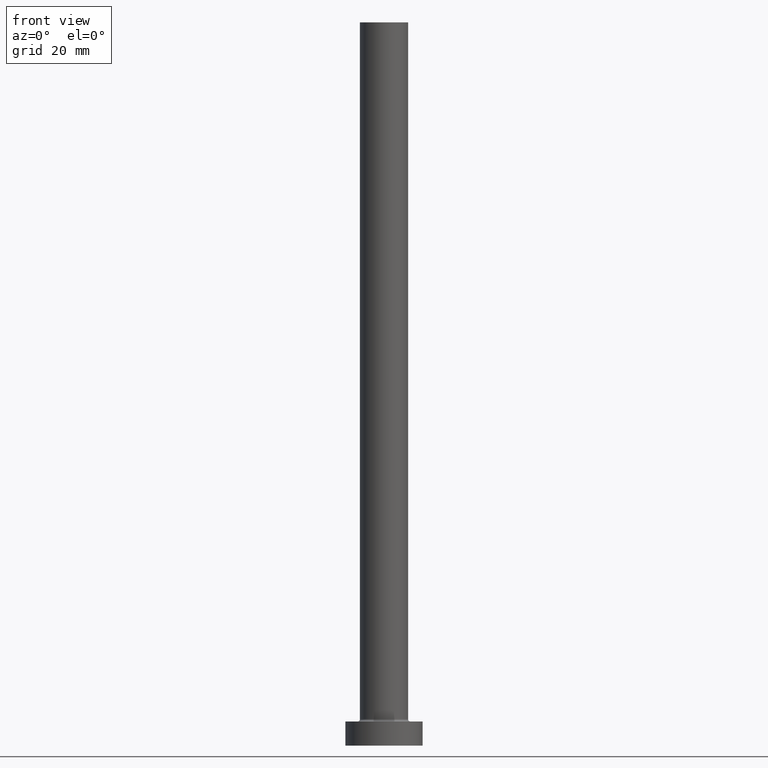
[diagram: clean part render]
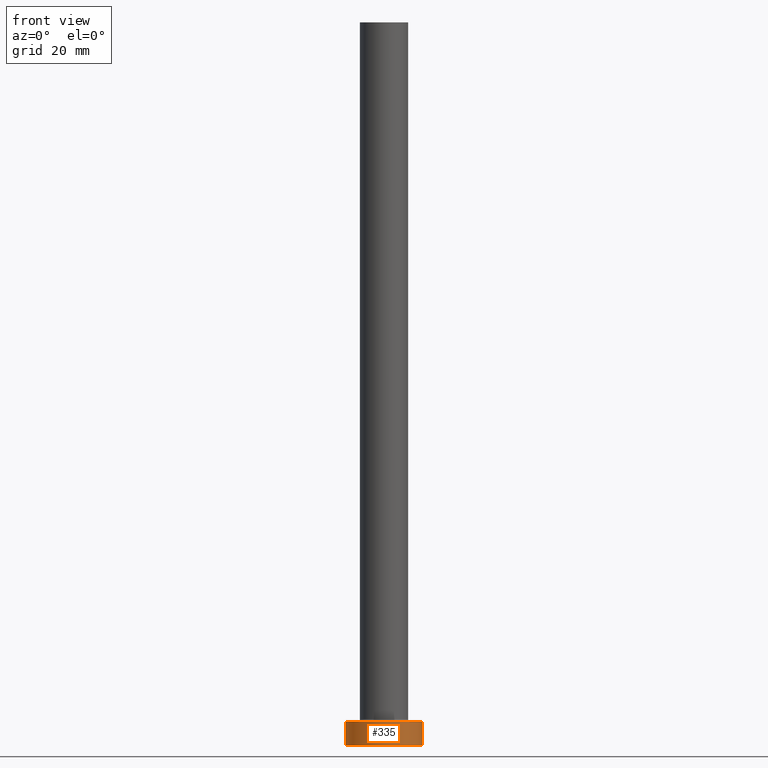
[diagram: same view with one face highlighted and labeled with its STEP entity id]
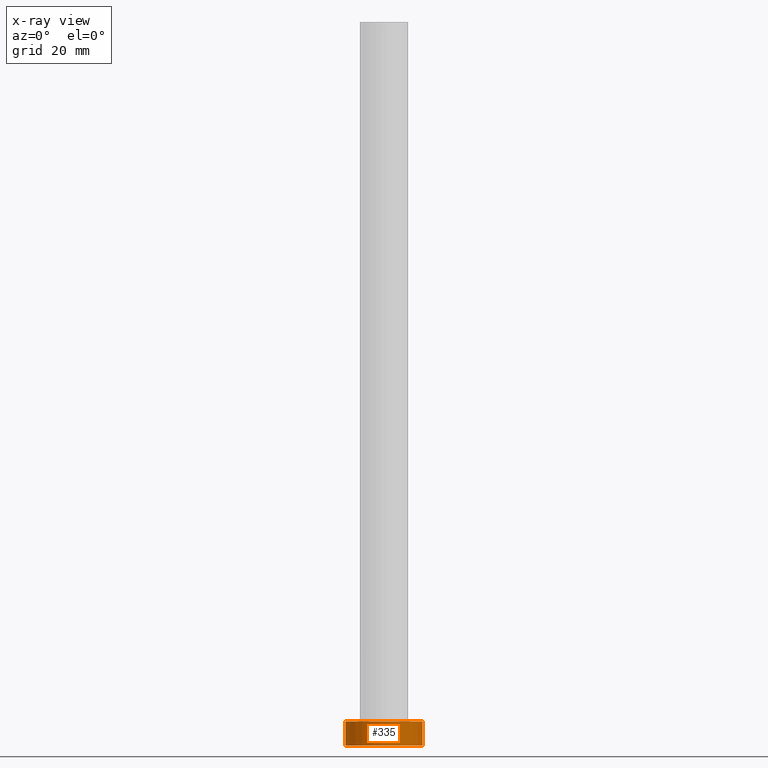
[diagram: x-ray of the same camera — body ghosted, the highlighted face saturated]
A machine part, front view. The second image highlights one B-rep face of the part: STEP entity #335.
The next image is the same camera in x-ray: the body ghosted, the highlighted face saturated — about 0% of this face is hidden behind the body in this view.
In plain terms, the highlighted cylindrical surface (partial cylindrical patch) has radius 8 mm, axis along (-0, -0, -1).
Its self-contained STEP definition (entity closure, byte-faithful):
#5 = EDGE_CURVE ( 'NONE', #99, #105, #129, .T. ) ;
#23 = AXIS2_PLACEMENT_3D ( 'NONE', #217, #427, #285 ) ;
#26 = VERTEX_POINT ( 'NONE', #224 ) ;
#41 = LINE ( 'NONE', #259, #93 ) ;
#60 = CARTESIAN_POINT ( 'NONE',  ( 8.000000000000000000, 9.797174393178825657E-16, 5.000000000000000000 ) ) ;
#77 = CARTESIAN_POINT ( 'NONE',  ( 0.000000000000000000, 0.000000000000000000, 5.000000000000000000 ) ) ;
#87 = ORIENTED_EDGE ( 'NONE', *, *, #267, .T. ) ;
#93 = VECTOR ( 'NONE', #220, 1000.000000000000000 ) ;
#99 = VERTEX_POINT ( 'NONE', #372 ) ;
#105 = VERTEX_POINT ( 'NONE', #126 ) ;
#126 = CARTESIAN_POINT ( 'NONE',  ( 8.000000000000000000, 9.797174393178825657E-16, 0.000000000000000000 ) ) ;
#127 = EDGE_LOOP ( 'NONE', ( #183, #272, #150, #87 ) ) ;
#129 = LINE ( 'NONE', #60, #320 ) ;
#133 = DIRECTION ( 'NONE',  ( -0.000000000000000000, -0.000000000000000000, -1.000000000000000000 ) ) ;
#146 = CARTESIAN_POINT ( 'NONE',  ( -8.000000000000000000, 0.000000000000000000, 0.000000000000000000 ) ) ;
#147 = DIRECTION ( 'NONE',  ( 1.000000000000000000, 0.000000000000000000, 0.000000000000000000 ) ) ;
#150 = ORIENTED_EDGE ( 'NONE', *, *, #456, .T. ) ;
#176 = AXIS2_PLACEMENT_3D ( 'NONE', #324, #455, #147 ) ;
#183 = ORIENTED_EDGE ( 'NONE', *, *, #5, .F. ) ;
#212 = DIRECTION ( 'NONE',  ( -1.000000000000000000, 0.000000000000000000, 0.000000000000000000 ) ) ;
#217 = CARTESIAN_POINT ( 'NONE',  ( 0.000000000000000000, 0.000000000000000000, 0.000000000000000000 ) ) ;
#220 = DIRECTION ( 'NONE',  ( -0.000000000000000000, -0.000000000000000000, -1.000000000000000000 ) ) ;
#224 = CARTESIAN_POINT ( 'NONE',  ( -8.000000000000000000, 0.000000000000000000, 5.000000000000000000 ) ) ;
#236 = VERTEX_POINT ( 'NONE', #146 ) ;
#242 = AXIS2_PLACEMENT_3D ( 'NONE', #77, #252, #212 ) ;
#252 = DIRECTION ( 'NONE',  ( -0.000000000000000000, -0.000000000000000000, -1.000000000000000000 ) ) ;
#254 = FACE_OUTER_BOUND ( 'NONE', #127, .T. ) ;
#259 = CARTESIAN_POINT ( 'NONE',  ( -8.000000000000000000, 0.000000000000000000, 5.000000000000000000 ) ) ;
#267 = EDGE_CURVE ( 'NONE', #236, #105, #300, .T. ) ;
#272 = ORIENTED_EDGE ( 'NONE', *, *, #278, .F. ) ;
#278 = EDGE_CURVE ( 'NONE', #26, #99, #449, .T. ) ;
#285 = DIRECTION ( 'NONE',  ( 1.000000000000000000, 0.000000000000000000, 0.000000000000000000 ) ) ;
#300 = CIRCLE ( 'NONE', #23, 8.000000000000000000 ) ;
#320 = VECTOR ( 'NONE', #133, 1000.000000000000000 ) ;
#324 = CARTESIAN_POINT ( 'NONE',  ( 0.000000000000000000, 0.000000000000000000, 5.000000000000000000 ) ) ;
#335 = ADVANCED_FACE ( 'NONE', ( #254 ), #394, .T. ) ;
#372 = CARTESIAN_POINT ( 'NONE',  ( 8.000000000000000000, 9.797174393178825657E-16, 5.000000000000000000 ) ) ;
#394 = CYLINDRICAL_SURFACE ( 'NONE', #242, 8.000000000000000000 ) ;
#427 = DIRECTION ( 'NONE',  ( 0.000000000000000000, 0.000000000000000000, 1.000000000000000000 ) ) ;
#449 = CIRCLE ( 'NONE', #176, 8.000000000000000000 ) ;
#455 = DIRECTION ( 'NONE',  ( 0.000000000000000000, 0.000000000000000000, 1.000000000000000000 ) ) ;
#456 = EDGE_CURVE ( 'NONE', #26, #236, #41, .T. ) ;